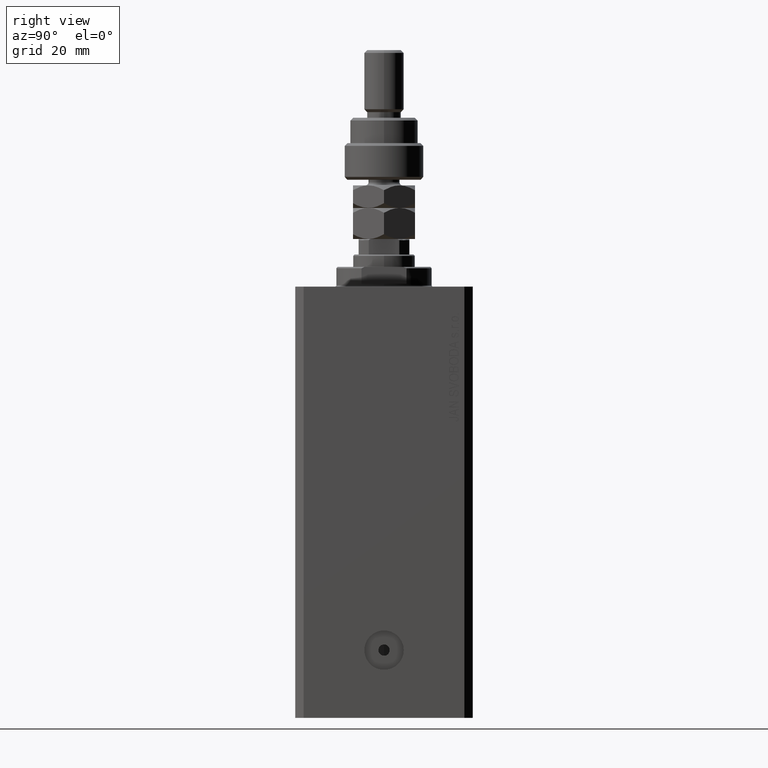
[diagram: clean part render]
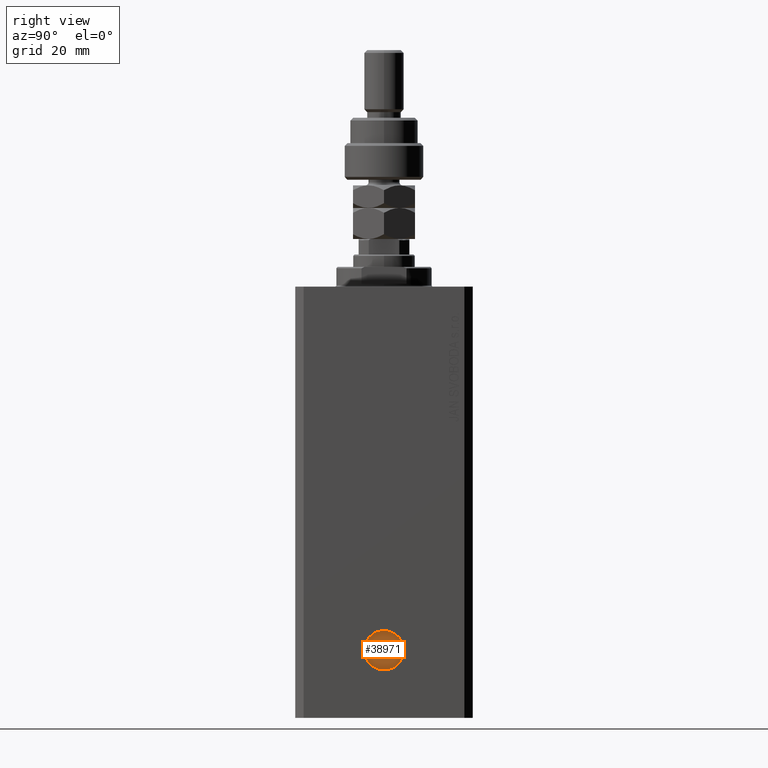
[diagram: same view with one face highlighted and labeled with its STEP entity id]
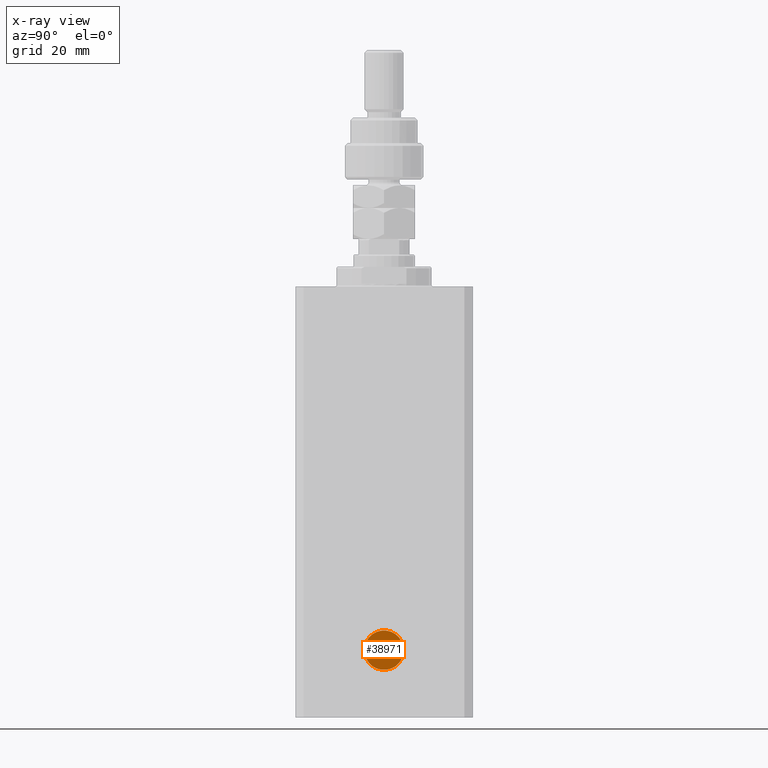
[diagram: x-ray of the same camera — body ghosted, the highlighted face saturated]
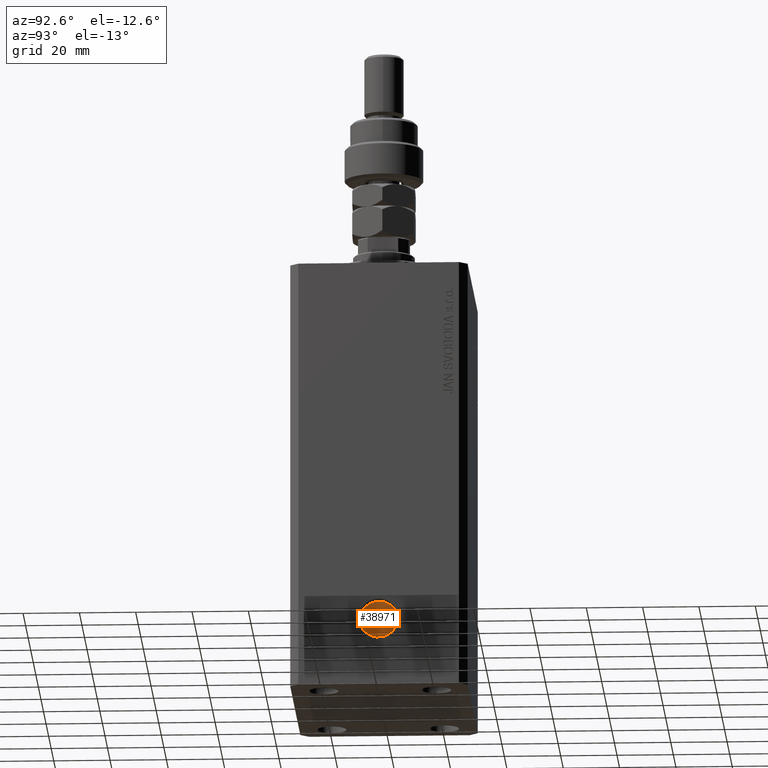
[diagram: same view with one face highlighted and labeled with its STEP entity id]
A machine part, right view. The second image highlights one B-rep face of the part: STEP entity #38971.
The next image is the same camera in x-ray: the body ghosted, the highlighted face saturated — about 0% of this face is hidden behind the body in this view.
A second angle (auxiliary view) of the same face is appended — the face is thin or edge-on in the first view.
In plain terms, the highlighted planar face has unit normal (1, -0, 0).
Its self-contained STEP definition (entity closure, byte-faithful):
#32 = DIRECTION ( 'NONE',  ( 1.000000000000000000, -1.334402673828349134E-14, 0.000000000000000000 ) ) ;
#314 = CARTESIAN_POINT ( 'NONE',  ( 38.00000000000017764, -6.999999999999914735, -129.0000000000000000 ) ) ;
#586 = EDGE_LOOP ( 'NONE', ( #28527, #10578 ) ) ;
#925 = EDGE_CURVE ( 'NONE', #24155, #20189, #39078, .T. ) ;
#2549 = CIRCLE ( 'NONE', #35283, 1.999999999999996225 ) ;
#4069 = CARTESIAN_POINT ( 'NONE',  ( 38.00000000000027001, 9.869897671684393130E-14, -129.0000000000000000 ) ) ;
#5272 = FACE_BOUND ( 'NONE', #586, .T. ) ;
#9028 = DIRECTION ( 'NONE',  ( 1.000000000000000000, -1.334402673828349134E-14, 0.000000000000000000 ) ) ;
#10081 = AXIS2_PLACEMENT_3D ( 'NONE', #39632, #32927, #18165 ) ;
#10578 = ORIENTED_EDGE ( 'NONE', *, *, #38972, .F. ) ;
#12200 = DIRECTION ( 'NONE',  ( 1.000000000000000000, -1.334402673828349134E-14, 0.000000000000000000 ) ) ;
#15277 = CARTESIAN_POINT ( 'NONE',  ( 38.00000000000024158, -1.999999999999897193, -129.0000000000000000 ) ) ;
#15291 = DIRECTION ( 'NONE',  ( 1.334402673828349134E-14, 1.000000000000000000, 0.000000000000000000 ) ) ;
#15668 = ORIENTED_EDGE ( 'NONE', *, *, #925, .T. ) ;
#17241 = ORIENTED_EDGE ( 'NONE', *, *, #21399, .T. ) ;
#18165 = DIRECTION ( 'NONE',  ( 1.288651725011339866E-14, 1.000000000000000000, 0.000000000000000000 ) ) ;
#19815 = DIRECTION ( 'NONE',  ( 1.000000000000000000, -1.334402673828349134E-14, 0.000000000000000000 ) ) ;
#20189 = VERTEX_POINT ( 'NONE', #314 ) ;
#20232 = CARTESIAN_POINT ( 'NONE',  ( 38.00000000000027001, 9.869897671684396916E-14, -129.0000000000000000 ) ) ;
#20337 = AXIS2_PLACEMENT_3D ( 'NONE', #44855, #19815, #15291 ) ;
#21399 = EDGE_CURVE ( 'NONE', #20189, #24155, #39014, .T. ) ;
#21561 = AXIS2_PLACEMENT_3D ( 'NONE', #20232, #9028, #34778 ) ;
#22437 = PLANE ( 'NONE',  #20337 ) ;
#24155 = VERTEX_POINT ( 'NONE', #43112 ) ;
#24542 = EDGE_CURVE ( 'NONE', #42834, #31691, #2549, .T. ) ;
#26252 = CARTESIAN_POINT ( 'NONE',  ( 38.00000000000027001, 9.869897671684393130E-14, -129.0000000000000000 ) ) ;
#26717 = DIRECTION ( 'NONE',  ( 1.387778780781448358E-14, 1.000000000000000000, 0.000000000000000000 ) ) ;
#28527 = ORIENTED_EDGE ( 'NONE', *, *, #24542, .F. ) ;
#29470 = CIRCLE ( 'NONE', #30969, 1.999999999999996225 ) ;
#30015 = CARTESIAN_POINT ( 'NONE',  ( 38.00000000000029843, 2.000000000000095035, -129.0000000000000000 ) ) ;
#30969 = AXIS2_PLACEMENT_3D ( 'NONE', #26252, #12200, #26717 ) ;
#31691 = VERTEX_POINT ( 'NONE', #15277 ) ;
#32927 = DIRECTION ( 'NONE',  ( 1.000000000000000000, -1.334402673828349134E-14, 0.000000000000000000 ) ) ;
#34778 = DIRECTION ( 'NONE',  ( 1.288651725011339866E-14, 1.000000000000000000, 0.000000000000000000 ) ) ;
#34990 = EDGE_LOOP ( 'NONE', ( #15668, #17241 ) ) ;
#35283 = AXIS2_PLACEMENT_3D ( 'NONE', #4069, #32, #39625 ) ;
#38971 = ADVANCED_FACE ( 'NONE', ( #5272, #41047 ), #22437, .T. ) ;
#38972 = EDGE_CURVE ( 'NONE', #31691, #42834, #29470, .T. ) ;
#39014 = CIRCLE ( 'NONE', #10081, 7.000000000000014211 ) ;
#39078 = CIRCLE ( 'NONE', #21561, 7.000000000000014211 ) ;
#39625 = DIRECTION ( 'NONE',  ( 1.387778780781448358E-14, 1.000000000000000000, 0.000000000000000000 ) ) ;
#39632 = CARTESIAN_POINT ( 'NONE',  ( 38.00000000000027001, 9.869897671684396916E-14, -129.0000000000000000 ) ) ;
#41047 = FACE_OUTER_BOUND ( 'NONE', #34990, .T. ) ;
#42834 = VERTEX_POINT ( 'NONE', #30015 ) ;
#43112 = CARTESIAN_POINT ( 'NONE',  ( 38.00000000000036238, 7.000000000000112799, -129.0000000000000000 ) ) ;
#44855 = CARTESIAN_POINT ( 'NONE',  ( 38.00000000000027001, 9.869897671684396916E-14, -129.0000000000000000 ) ) ;